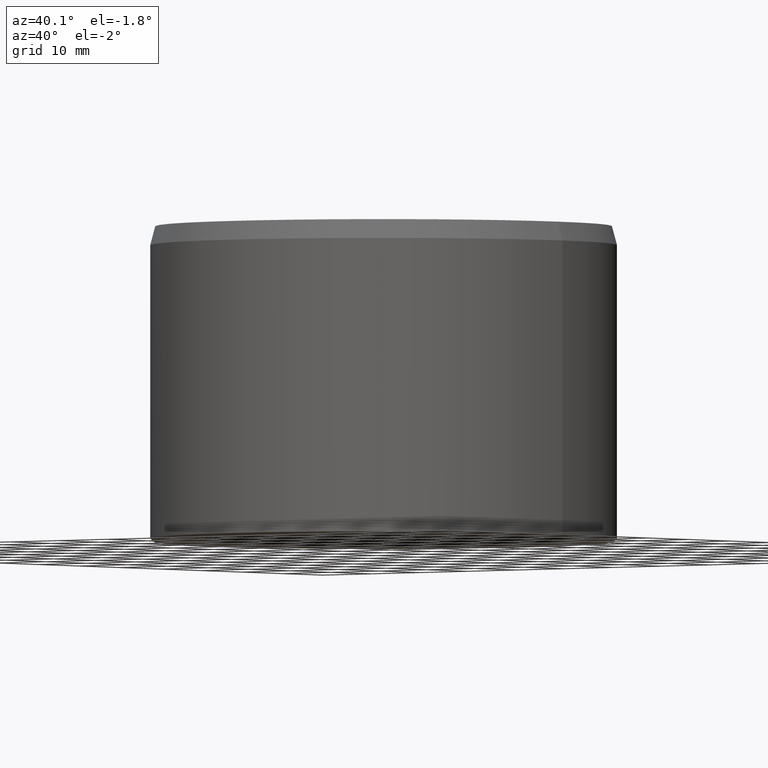
[diagram: clean part render]
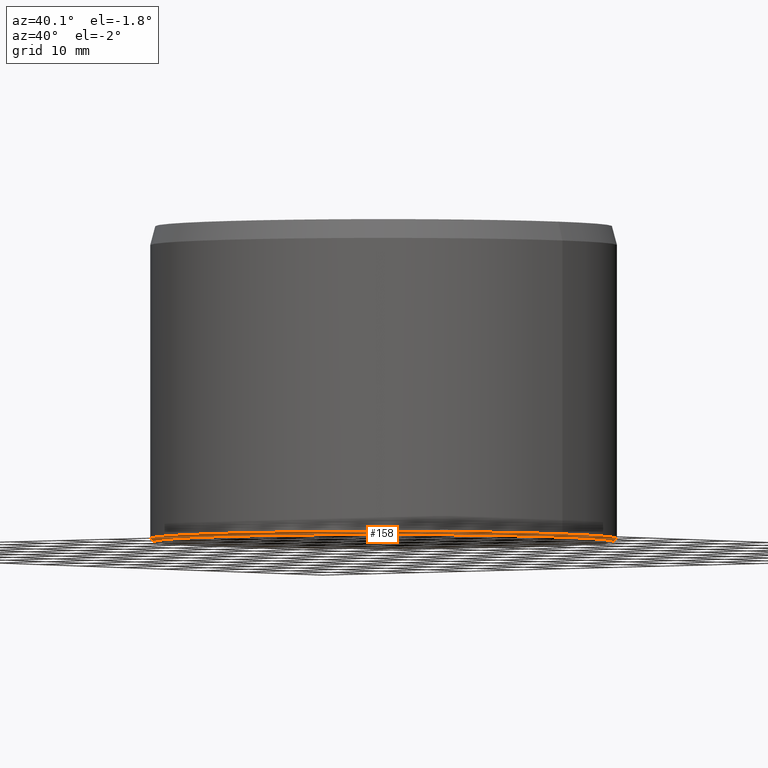
[diagram: same view with one face highlighted and labeled with its STEP entity id]
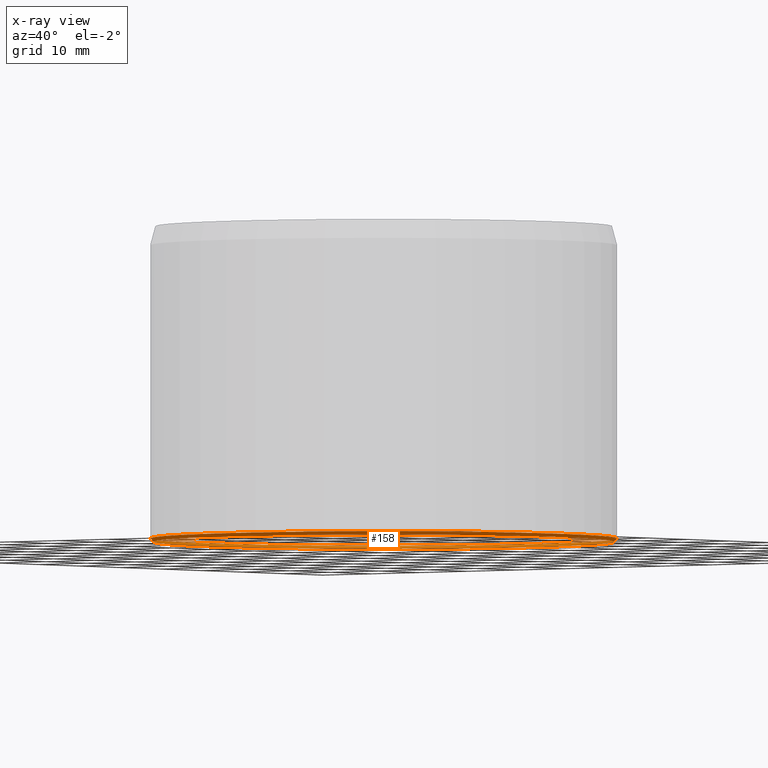
[diagram: x-ray of the same camera — body ghosted, the highlighted face saturated]
A machine part, auxiliary view. The second image highlights one B-rep face of the part: STEP entity #158.
The next image is the same camera in x-ray: the body ghosted, the highlighted face saturated — about 1% of this face is hidden behind the body in this view.
In plain terms, the highlighted conical surface has half-angle 45 deg.
Its self-contained STEP definition (entity closure, byte-faithful):
#158=ADVANCED_FACE('',(#178,#179),#180,.T.);
#178=FACE_OUTER_BOUND('',#203,.T.);
#179=FACE_BOUND('',#204,.T.);
#180=CONICAL_SURFACE('',#205,0.0365,0.785398163397422);
#203=EDGE_LOOP('',(#237));
#204=EDGE_LOOP('',(#238));
#205=AXIS2_PLACEMENT_3D('',#239,#240,#241);
#237=ORIENTED_EDGE('',*,*,#258,.T.);
#238=ORIENTED_EDGE('',*,*,#257,.F.);
#239=CARTESIAN_POINT('',(0.0,0.0,7.96020419445779E-019));
#240=DIRECTION('',(-0.0,6.12323399573677E-017,1.0));
#241=DIRECTION('',(0.0,-1.0,6.12323399573677E-017));
#257=EDGE_CURVE('',#270,#270,#271,.T.);
#258=EDGE_CURVE('',#272,#272,#273,.T.);
#270=VERTEX_POINT('',#286);
#271=CIRCLE('',#287,0.0365);
#272=VERTEX_POINT('',#288);
#273=CIRCLE('',#289,0.037);
#286=CARTESIAN_POINT('',(0.0365,0.0,7.96020419445779E-019));
#287=AXIS2_PLACEMENT_3D('',#307,#308,#309);
#288=CARTESIAN_POINT('',(0.037,0.0,0.0005));
#289=AXIS2_PLACEMENT_3D('',#310,#311,#312);
#307=CARTESIAN_POINT('',(0.0,0.0,7.96020419445779E-019));
#308=DIRECTION('',(0.0,-6.12323399573677E-017,-1.0));
#309=DIRECTION('',(0.0,1.0,-6.12323399573677E-017));
#310=CARTESIAN_POINT('',(0.0,0.0,0.0005));
#311=DIRECTION('',(0.0,-6.12323399573677E-017,-1.0));
#312=DIRECTION('',(0.0,1.0,-6.12323399573677E-017));